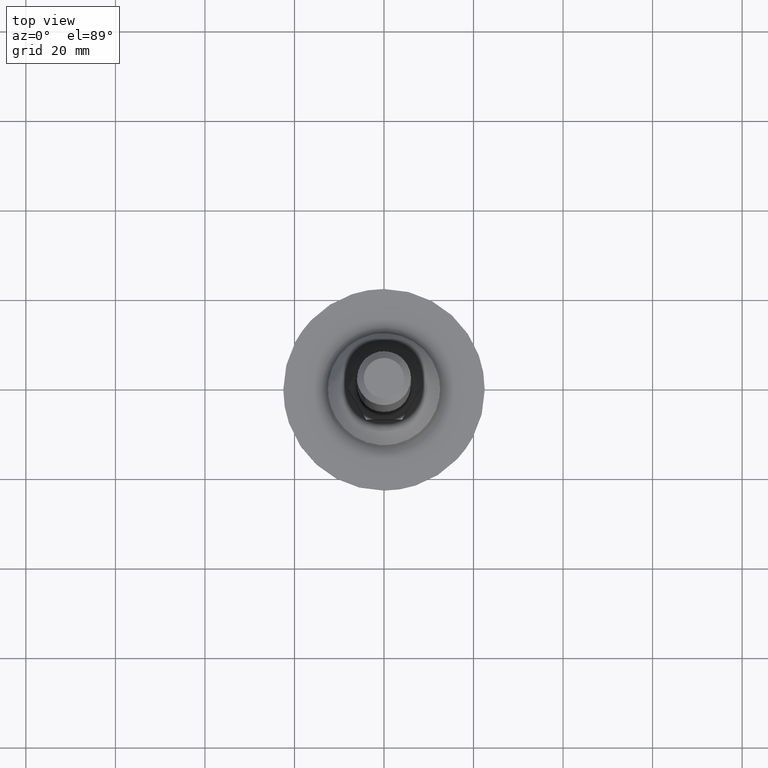
[diagram: clean part render]
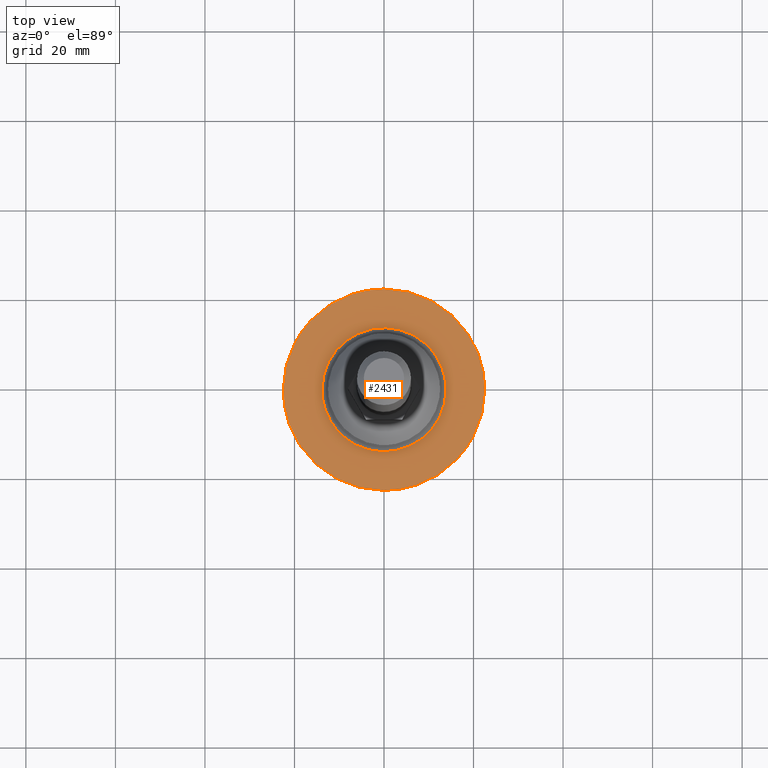
[diagram: same view with one face highlighted and labeled with its STEP entity id]
A machine part, top view. The second image highlights one B-rep face of the part: STEP entity #2431.
In plain terms, the highlighted face is a freeform B-spline surface patch.
Its self-contained STEP definition (entity closure, byte-faithful):
#2218=CARTESIAN_POINT('',(-16.320922947001939,15.487977668788670,2.499999999999885));
#2219=VERTEX_POINT('',#2218);
#2225=CARTESIAN_POINT('',(0.000001948370509,22.499999999999918,2.499999999999885));
#2226=VERTEX_POINT('',#2225);
#2227=CARTESIAN_POINT('',(-16.320922947001939,15.487977668788670,2.499999999999885));
#2228=CARTESIAN_POINT('',(-15.175446927567741,16.695501304642200,2.499999999999887));
#2229=CARTESIAN_POINT('',(-13.200061648920670,18.360815043820740,2.499999999999885));
#2230=CARTESIAN_POINT('',(-10.362849425288530,20.020827063630939,2.499999999999887));
#2231=CARTESIAN_POINT('',(-7.843486437947345,21.150926095275899,2.499999999999889));
#2232=CARTESIAN_POINT('',(-4.469909348920674,22.187220321522560,2.499999999999876));
#2233=CARTESIAN_POINT('',(-1.664392493906435,22.500302043613811,2.499999999999889));
#2234=CARTESIAN_POINT('',(0.000001948370509,22.499999999999918,2.499999999999885));
#2235=B_SPLINE_CURVE_WITH_KNOTS('',3,(#2227,#2228,#2229,#2230,#2231,#2232,#2233,#2234),.UNSPECIFIED.,.F.,.U.,(4,1,1,1,1,4),(0.000000026460839,4.993118240403923,7.703668610692326,9.843570402791931,13.267421353322190,18.260539567274950),.UNSPECIFIED.);
#2236=EDGE_CURVE('',#2219,#2226,#2235,.T.);
#2238=CARTESIAN_POINT('',(22.500000000000000,0.0,2.499999999999885));
#2239=VERTEX_POINT('',#2238);
#2240=CARTESIAN_POINT('',(0.000001948370509,22.499999999999918,2.499999999999885));
#2241=CARTESIAN_POINT('',(1.288542823857606,22.500088622953189,2.499999999999893));
#2242=CARTESIAN_POINT('',(4.003679914958948,22.266193367593232,2.499999999999866));
#2243=CARTESIAN_POINT('',(7.303408277603523,21.364001377209579,2.499999999999910));
#2244=CARTESIAN_POINT('',(10.094243762427450,20.157324692132530,2.499999999999864));
#2245=CARTESIAN_POINT('',(12.461142038544200,18.816575370512741,2.499999999999901));
#2246=CARTESIAN_POINT('',(14.848126215982941,17.000413230420889,2.499999999999923));
#2247=CARTESIAN_POINT('',(17.416392045141858,14.416582327366109,2.499999999999841));
#2248=CARTESIAN_POINT('',(19.707770800395281,11.163271622338570,2.499999999999996));
#2249=CARTESIAN_POINT('',(21.177282709631921,7.819949116157187,2.499999999999798));
#2250=CARTESIAN_POINT('',(22.219551081911959,4.141583020500266,2.500000000000003));
#2251=CARTESIAN_POINT('',(22.500402261903162,1.748786798616669,2.499999999999782));
#2252=CARTESIAN_POINT('',(22.500000000000000,0.0,2.499999999999885));
#2253=B_SPLINE_CURVE_WITH_KNOTS('',3,(#2240,#2241,#2242,#2243,#2244,#2245,#2246,#2247,#2248,#2249,#2250,#2251,#2252),.UNSPECIFIED.,.F.,.U.,(4,1,1,1,1,1,1,1,1,1,4),(0.000000092857171,3.865624436655814,8.145449903712564,10.216338001058631,12.977505951689460,16.290915226238269,19.190078410592069,23.884108194995260,28.163936626291068,30.096761194021799,35.342971697531461),.UNSPECIFIED.);
#2254=EDGE_CURVE('',#2226,#2239,#2253,.T.);
#2256=CARTESIAN_POINT('',(16.320922947001868,-15.487977668788609,2.499999999999885));
#2257=VERTEX_POINT('',#2256);
#2258=CARTESIAN_POINT('',(22.500000000000000,0.0,2.499999999999885));
#2259=CARTESIAN_POINT('',(22.500109492663888,-1.290086818690951,2.499999999999885));
#2260=CARTESIAN_POINT('',(22.323486006788990,-3.336370010125643,2.499999999999885));
#2261=CARTESIAN_POINT('',(21.635690878740629,-6.377507761600719,2.499999999999885));
#2262=CARTESIAN_POINT('',(20.733167645267901,-8.896595414791525,2.499999999999886));
#2263=CARTESIAN_POINT('',(19.073546904420780,-12.151540741873150,2.499999999999883));
#2264=CARTESIAN_POINT('',(17.515473794409381,-14.229728316877310,2.499999999999888));
#2265=CARTESIAN_POINT('',(16.320922947001868,-15.487977668788609,2.499999999999885));
#2266=B_SPLINE_CURVE_WITH_KNOTS('',3,(#2258,#2259,#2260,#2261,#2262,#2263,#2264,#2265),.UNSPECIFIED.,.F.,.U.,(4,1,1,1,1,4),(0.000000021519629,3.870236930084653,6.139006360072221,9.341933864506792,11.877628898893020,17.082434979526880),.UNSPECIFIED.);
#2267=EDGE_CURVE('',#2239,#2257,#2266,.T.);
#2301=CARTESIAN_POINT('',(-0.000001948370870,-22.499999999999918,2.499999999999885));
#2302=VERTEX_POINT('',#2301);
#2303=CARTESIAN_POINT('',(16.320922947001868,-15.487977668788609,2.499999999999885));
#2304=CARTESIAN_POINT('',(15.633547119501280,-16.212377071937549,2.499999999999886));
#2305=CARTESIAN_POINT('',(14.127070336419999,-17.601729466027599,2.499999999999886));
#2306=CARTESIAN_POINT('',(11.428674428519370,-19.482500000979599,2.499999999999884));
#2307=CARTESIAN_POINT('',(8.002396399235431,-21.165366490382191,2.499999999999881));
#2308=CARTESIAN_POINT('',(4.089596750329968,-22.259321119338239,2.499999999999898));
#2309=CARTESIAN_POINT('',(1.283938987589492,-22.500078407540052,2.499999999999866));
#2310=CARTESIAN_POINT('',(-0.000001948370870,-22.499999999999918,2.499999999999885));
#2311=B_SPLINE_CURVE_WITH_KNOTS('',3,(#2303,#2304,#2305,#2306,#2307,#2308,#2309,#2310),.UNSPECIFIED.,.F.,.U.,(4,1,1,1,1,4),(0.000000026461219,2.995858530284378,6.134411293033953,9.843570402792269,14.408707755415250,18.260539567275281),.UNSPECIFIED.);
#2312=EDGE_CURVE('',#2257,#2302,#2311,.T.);
#2314=CARTESIAN_POINT('',(-22.500000000000000,0.0,2.499999999999885));
#2315=VERTEX_POINT('',#2314);
#2316=CARTESIAN_POINT('',(-0.000001948370870,-22.499999999999918,2.499999999999885));
#2317=CARTESIAN_POINT('',(-1.288549063876429,-22.500108094975872,2.499999999999892));
#2318=CARTESIAN_POINT('',(-3.681510481343545,-22.293843641583159,2.499999999999874));
#2319=CARTESIAN_POINT('',(-7.486303174159327,-21.340959863944722,2.499999999999884));
#2320=CARTESIAN_POINT('',(-10.780225224119290,-19.868819913707028,2.499999999999893));
#2321=CARTESIAN_POINT('',(-13.508033669421749,-18.057900293185298,2.499999999999872));
#2322=CARTESIAN_POINT('',(-15.934843131569741,-16.003423363932050,2.499999999999907));
#2323=CARTESIAN_POINT('',(-18.101420599154181,-13.537974525801820,2.499999999999868));
#2324=CARTESIAN_POINT('',(-19.828168488241442,-10.754542270221640,2.499999999999898));
#2325=CARTESIAN_POINT('',(-21.064545345878660,-8.076945879480817,2.499999999999889));
#2326=CARTESIAN_POINT('',(-22.165637323586221,-4.601794522954205,2.499999999999868));
#2327=CARTESIAN_POINT('',(-22.500368229556930,-1.748768444734339,2.499999999999923));
#2328=CARTESIAN_POINT('',(-22.500000000000000,0.0,2.499999999999885));
#2329=B_SPLINE_CURVE_WITH_KNOTS('',3,(#2316,#2317,#2318,#2319,#2320,#2321,#2322,#2323,#2324,#2325,#2326,#2327,#2328),.UNSPECIFIED.,.F.,.U.,(4,1,1,1,1,1,1,1,1,1,4),(0.000000092859231,3.865624436657459,7.179038418417516,11.734980350779800,14.634205865737540,16.981199710401750,21.260981191600870,24.436336740466249,26.783346964920600,30.096761194021759,35.342971697531432),.UNSPECIFIED.);
#2330=EDGE_CURVE('',#2302,#2315,#2329,.T.);
#2332=CARTESIAN_POINT('',(-22.500000000000000,0.0,2.499999999999885));
#2333=CARTESIAN_POINT('',(-22.500120849535271,1.290086266902214,2.499999999999890));
#2334=CARTESIAN_POINT('',(-22.323483509901180,3.336372102743094,2.499999999999881));
#2335=CARTESIAN_POINT('',(-21.606218439499148,6.507848408544875,2.499999999999886));
#2336=CARTESIAN_POINT('',(-20.464881041688830,9.606853773671839,2.499999999999898));
#2337=CARTESIAN_POINT('',(-18.638847887898070,12.781405891306120,2.499999999999843));
#2338=CARTESIAN_POINT('',(-17.086502952973021,14.681296102691570,2.499999999999935));
#2339=CARTESIAN_POINT('',(-16.320922947001939,15.487977668788670,2.499999999999885));
#2340=B_SPLINE_CURVE_WITH_KNOTS('',3,(#2332,#2333,#2334,#2335,#2336,#2337,#2338,#2339),.UNSPECIFIED.,.F.,.U.,(4,1,1,1,1,4),(0.000000021519462,3.870236930084717,6.139006360072395,9.742319940872466,13.746023581165620,17.082434979526880),.UNSPECIFIED.);
#2341=EDGE_CURVE('',#2315,#2219,#2340,.T.);
#2347=CARTESIAN_POINT('',(-24.747749912781270,-24.747749912781181,2.499999999999885));
#2348=CARTESIAN_POINT('',(24.747751119775330,-24.747749912781181,2.499999999999885));
#2349=CARTESIAN_POINT('',(-24.747749912781270,24.747751119775231,2.499999999999885));
#2350=CARTESIAN_POINT('',(24.747751119775330,24.747751119775231,2.499999999999885));
#2351=B_SPLINE_SURFACE_WITH_KNOTS('',1,1,((#2347,#2349),(#2348,#2350)),.UNSPECIFIED.,.F.,.F.,.U.,(2,2),(2,2),(0.0,49.495501032556589),(0.0,49.495501032556419),.UNSPECIFIED.);
#2352=ORIENTED_EDGE('',*,*,#2330,.F.);
#2353=ORIENTED_EDGE('',*,*,#2312,.F.);
#2354=ORIENTED_EDGE('',*,*,#2267,.F.);
#2355=ORIENTED_EDGE('',*,*,#2254,.F.);
#2356=ORIENTED_EDGE('',*,*,#2236,.F.);
#2357=ORIENTED_EDGE('',*,*,#2341,.F.);
#2358=EDGE_LOOP('',(#2352,#2353,#2354,#2355,#2356,#2357));
#2359=FACE_OUTER_BOUND('',#2358,.T.);
#2360=CARTESIAN_POINT('',(-13.856407000000001,0.0,2.499999999999885));
#2361=VERTEX_POINT('',#2360);
#2362=CARTESIAN_POINT('',(11.882238361329190,7.128283556819010,2.499999999999885));
#2363=VERTEX_POINT('',#2362);
#2364=CARTESIAN_POINT('',(-13.856407000000001,0.0,2.499999999999885));
#2365=CARTESIAN_POINT('',(-13.856432924916239,0.657023880201630,2.499999999999887));
#2366=CARTESIAN_POINT('',(-13.756102598022730,2.064966154446149,2.499999999999890));
#2367=CARTESIAN_POINT('',(-13.317712458768680,3.993412916083199,2.499999999999881));
#2368=CARTESIAN_POINT('',(-12.544049230655769,6.013246767108684,2.499999999999865));
#2369=CARTESIAN_POINT('',(-11.540270075796260,7.773717487878840,2.499999999999928));
#2370=CARTESIAN_POINT('',(-10.039920932793599,9.645437707943806,2.499999999999857));
#2371=CARTESIAN_POINT('',(-8.560122004605802,10.962944339197200,2.499999999999912));
#2372=CARTESIAN_POINT('',(-6.831028627936600,12.095886695634119,2.499999999999876));
#2373=CARTESIAN_POINT('',(-5.311357810970687,12.845321443042421,2.499999999999894));
#2374=CARTESIAN_POINT('',(-3.214368669463642,13.542625993554511,2.499999999999866));
#2375=CARTESIAN_POINT('',(-0.931784098870874,13.907298275385680,2.499999999999889));
#2376=CARTESIAN_POINT('',(1.422576519187895,13.837534740353551,2.499999999999887));
#2377=CARTESIAN_POINT('',(3.642995767540904,13.428956625763810,2.499999999999884));
#2378=CARTESIAN_POINT('',(5.642743182974538,12.722726687430781,2.499999999999886));
#2379=CARTESIAN_POINT('',(7.622459391735416,11.635828881636231,2.499999999999889));
#2380=CARTESIAN_POINT('',(9.826650391519072,9.944736468193517,2.499999999999869));
#2381=CARTESIAN_POINT('',(11.182600279035739,8.295821760902948,2.499999999999908));
#2382=CARTESIAN_POINT('',(11.882238361329190,7.128283556819010,2.499999999999885));
#2383=B_SPLINE_CURVE_WITH_KNOTS('',3,(#2364,#2365,#2366,#2367,#2368,#2369,#2370,#2371,#2372,#2373,#2374,#2375,#2376,#2377,#2378,#2379,#2380,#2381,#2382),.UNSPECIFIED.,.F.,.U.,(4,1,1,1,1,1,1,1,1,1,1,1,1,1,1,1,4),(0.000000231655441,1.971078468156215,4.223852539900953,5.913431576149133,8.447808500777580,10.278182577605611,13.094151012036590,14.361332208159130,16.473254931281939,18.162731732429901,20.978654580222539,23.372226315971130,25.202618667056878,27.736976871092661,29.708135252510420,31.960874486783670,36.043977423365561),.UNSPECIFIED.);
#2384=EDGE_CURVE('',#2361,#2363,#2383,.T.);
#2385=ORIENTED_EDGE('',*,*,#2384,.T.);
#2386=CARTESIAN_POINT('',(13.856407000000001,0.0,2.499999999999885));
#2387=VERTEX_POINT('',#2386);
#2388=CARTESIAN_POINT('',(11.882238361329190,7.128283556819010,2.499999999999885));
#2389=CARTESIAN_POINT('',(12.484326761118560,6.125177145410923,2.499999999999881));
#2390=CARTESIAN_POINT('',(13.495260867922500,3.821399627225967,2.499999999999893));
#2391=CARTESIAN_POINT('',(13.856947049798491,1.325933230779294,2.499999999999876));
#2392=CARTESIAN_POINT('',(13.856407000000001,0.0,2.499999999999885));
#2393=B_SPLINE_CURVE_WITH_KNOTS('',3,(#2388,#2389,#2390,#2391,#2392),.UNSPECIFIED.,.F.,.U.,(4,1,4),(0.000000015086248,3.509726170292988,7.487386305331486),.UNSPECIFIED.);
#2394=EDGE_CURVE('',#2363,#2387,#2393,.T.);
#2395=ORIENTED_EDGE('',*,*,#2394,.T.);
#2396=CARTESIAN_POINT('',(-11.882238361329190,-7.128283556819015,2.499999999999885));
#2397=VERTEX_POINT('',#2396);
#2398=CARTESIAN_POINT('',(13.856407000000001,0.0,2.499999999999885));
#2399=CARTESIAN_POINT('',(13.856748486017869,-1.173331100138515,2.499999999999880));
#2400=CARTESIAN_POINT('',(13.616471695739291,-3.050427065662550,2.499999999999895));
#2401=CARTESIAN_POINT('',(12.822711374672100,-5.365720464453649,2.499999999999880));
#2402=CARTESIAN_POINT('',(11.954088461401341,-7.086743876514230,2.499999999999885));
#2403=CARTESIAN_POINT('',(10.865648502747030,-8.679456571743886,2.499999999999889));
#2404=CARTESIAN_POINT('',(9.554661933809337,-10.095628549867390,2.499999999999897));
#2405=CARTESIAN_POINT('',(7.991176625633725,-11.377578074768021,2.499999999999900));
#2406=CARTESIAN_POINT('',(6.259267499705998,-12.426469090676560,2.499999999999913));
#2407=CARTESIAN_POINT('',(4.428623179278609,-13.172538742931360,2.499999999999836));
#2408=CARTESIAN_POINT('',(2.427270903847665,-13.694156757121760,2.499999999999937));
#2409=CARTESIAN_POINT('',(0.318792416515442,-13.921939550808551,2.499999999999877));
#2410=CARTESIAN_POINT('',(-2.124590787575223,-13.762538874530820,2.499999999999886));
#2411=CARTESIAN_POINT('',(-4.689555023844313,-13.140751863614840,2.499999999999887));
#2412=CARTESIAN_POINT('',(-6.910255870379348,-12.092324202472170,2.499999999999885));
#2413=CARTESIAN_POINT('',(-8.793519016790782,-10.765048488914580,2.499999999999887));
#2414=CARTESIAN_POINT('',(-10.410677266910421,-9.255531346359843,2.499999999999874));
#2415=CARTESIAN_POINT('',(-11.399474198417490,-7.933265614169343,2.499999999999918));
#2416=CARTESIAN_POINT('',(-11.882238361329190,-7.128283556819015,2.499999999999885));
#2417=B_SPLINE_CURVE_WITH_KNOTS('',3,(#2398,#2399,#2400,#2401,#2402,#2403,#2404,#2405,#2406,#2407,#2408,#2409,#2410,#2411,#2412,#2413,#2414,#2415,#2416),.UNSPECIFIED.,.F.,.U.,(4,1,1,1,1,1,1,1,1,1,1,1,1,1,1,1,4),(0.000000231649814,3.519894176223460,5.631859575902496,7.321431236967577,9.292593725414339,11.404570715143841,13.094151012033050,15.346896675831649,17.458870878132579,19.007488526375070,21.541849320868408,23.794620867914080,26.328999010848928,29.426557367861939,31.116137712021221,33.228052967588667,36.043977423365540),.UNSPECIFIED.);
#2418=EDGE_CURVE('',#2387,#2397,#2417,.T.);
#2419=ORIENTED_EDGE('',*,*,#2418,.T.);
#2420=CARTESIAN_POINT('',(-11.882238361329190,-7.128283556819015,2.499999999999885));
#2421=CARTESIAN_POINT('',(-12.363822999824460,-6.325760135407681,2.499999999999883));
#2422=CARTESIAN_POINT('',(-13.030082525627140,-4.906495897985472,2.499999999999888));
#2423=CARTESIAN_POINT('',(-13.697725310884040,-2.495738980909651,2.499999999999879));
#2424=CARTESIAN_POINT('',(-13.856547773738811,-0.935931883420679,2.499999999999897));
#2425=CARTESIAN_POINT('',(-13.856407000000001,0.0,2.499999999999885));
#2426=B_SPLINE_CURVE_WITH_KNOTS('',3,(#2420,#2421,#2422,#2423,#2424,#2425),.UNSPECIFIED.,.F.,.U.,(4,1,1,4),(0.000000015086089,2.807770116740809,4.679616203676964,7.487386305331492),.UNSPECIFIED.);
#2427=EDGE_CURVE('',#2397,#2361,#2426,.T.);
#2428=ORIENTED_EDGE('',*,*,#2427,.T.);
#2429=EDGE_LOOP('',(#2385,#2395,#2419,#2428));
#2430=FACE_BOUND('',#2429,.T.);
#2431=ADVANCED_FACE('',(#2359,#2430),#2351,.T.);